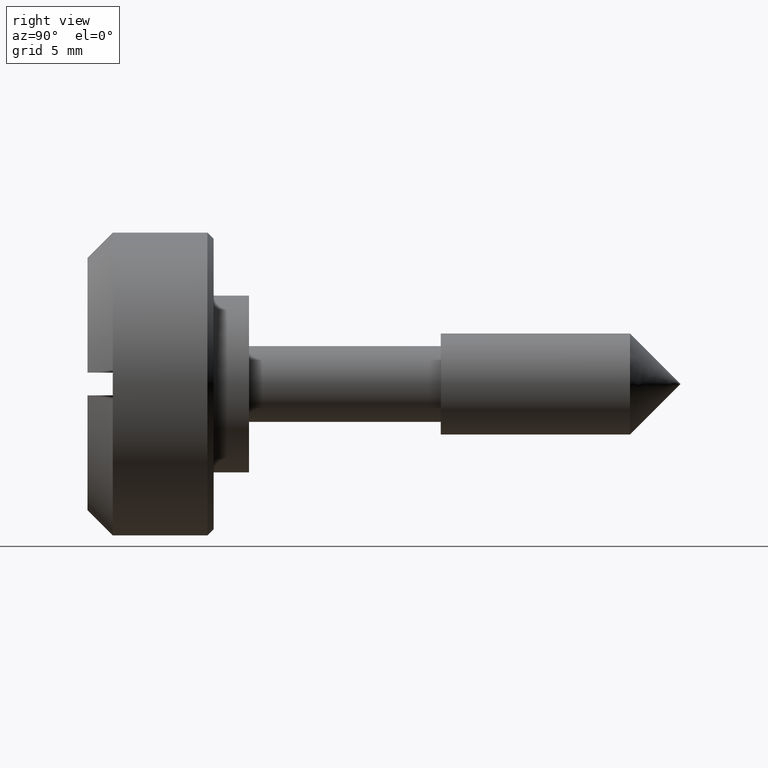
[diagram: clean part render]
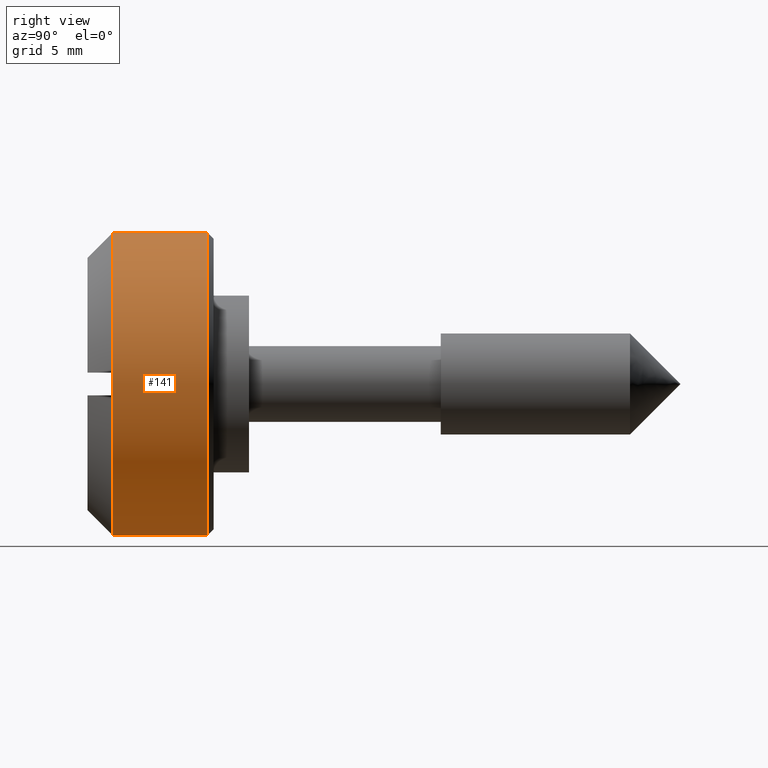
[diagram: same view with one face highlighted and labeled with its STEP entity id]
A machine part, right view. The second image highlights one B-rep face of the part: STEP entity #141.
In plain terms, the highlighted cylindrical surface (partial cylindrical patch) has radius 12 mm, axis along (0, -1, -0).
Its self-contained STEP definition (entity closure, byte-faithful):
#141=ADVANCED_FACE('',(#450),#449,.T.);
#449=CYLINDRICAL_SURFACE('',#732,1.20000000000E+01);
#450=FACE_OUTER_BOUND('',#733,.T.);
#729=CARTESIAN_POINT('',(-1.00200000000E+03,0.00000000000E+00,0.00000000000E+00));
#730=DIRECTION('',(-1.00000000000E+00,-0.00000000000E+00,-0.00000000000E+00));
#731=DIRECTION('',(-0.00000000000E+00,-0.00000000000E+00,1.00000000000E+00));
#732=AXIS2_PLACEMENT_3D('',#729,#730,#731);
#733=EDGE_LOOP('',(#972,#973,#974,#975));
#972=ORIENTED_EDGE('',*,*,#1114,.T.);
#973=ORIENTED_EDGE('',*,*,#1111,.T.);
#974=ORIENTED_EDGE('',*,*,#1115,.F.);
#975=ORIENTED_EDGE('',*,*,#1113,.F.);
#1111=EDGE_CURVE('',#1676,#1668,#1677,.T.);
#1113=EDGE_CURVE('',#1683,#1669,#1690,.T.);
#1114=EDGE_CURVE('',#1683,#1676,#1696,.T.);
#1115=EDGE_CURVE('',#1669,#1668,#1702,.T.);
#1668=VERTEX_POINT('',#2133);
#1669=VERTEX_POINT('',#2134);
#1676=VERTEX_POINT('',#2139);
#1677=(BOUNDED_CURVE() B_SPLINE_CURVE(1,(#2140,#2141),.UNSPECIFIED.,.F.,.F.) B_SPLINE_CURVE_WITH_KNOTS((2,2),(8.33333320912E-02,9.16666667486E-01),.UNSPECIFIED.) CURVE() GEOMETRIC_REPRESENTATION_ITEM() RATIONAL_B_SPLINE_CURVE((1.00000000000E+00,1.00000000000E+00)) REPRESENTATION_ITEM('') );
#1683=VERTEX_POINT('',#2142);
#1690=(BOUNDED_CURVE() B_SPLINE_CURVE(1,(#2147,#2148),.UNSPECIFIED.,.F.,.F.) B_SPLINE_CURVE_WITH_KNOTS((2,2),(8.33333333333E-02,9.16666666667E-01),.UNSPECIFIED.) CURVE() GEOMETRIC_REPRESENTATION_ITEM() RATIONAL_B_SPLINE_CURVE((7.50000000000E-01,7.50000000000E-01)) REPRESENTATION_ITEM('') );
#1696=CIRCLE('',#2152,1.20000000000E+01);
#1702=CIRCLE('',#2156,1.20000000000E+01);
#2133=CARTESIAN_POINT('',(-9.99990000000E+00,0.00000000000E+00,1.20000000000E+01));
#2134=CARTESIAN_POINT('',(-9.99990000000E+00,-5.92118946467E-16,-1.20000000000E+01));
#2139=CARTESIAN_POINT('',(-2.50000000000E+00,-4.73695157173E-15,1.20000000000E+01));
#2140=CARTESIAN_POINT('',(-2.49999998882E+00,0.00000000000E+00,1.20000000000E+01));
#2141=CARTESIAN_POINT('',(-9.99990000737E+00,0.00000000000E+00,1.20000000000E+01));
#2142=CARTESIAN_POINT('',(-2.50000000000E+00,0.00000000000E+00,-1.20000000000E+01));
#2147=CARTESIAN_POINT('',(-2.50000000000E+00,-5.92118946467E-16,-1.20000000000E+01));
#2148=CARTESIAN_POINT('',(-9.99990000000E+00,-5.92118946467E-16,-1.20000000000E+01));
#2149=CARTESIAN_POINT('',(-2.50000000000E+00,0.00000000000E+00,0.00000000000E+00));
#2150=DIRECTION('',(-1.00000000000E+00,0.00000000000E+00,-0.00000000000E+00));
#2151=DIRECTION('',(0.00000000000E+00,-1.22460635382E-16,-1.00000000000E+00));
#2152=AXIS2_PLACEMENT_3D('',#2149,#2150,#2151);
#2153=CARTESIAN_POINT('',(-9.99990000000E+00,0.00000000000E+00,0.00000000000E+00));
#2154=DIRECTION('',(-1.00000000000E+00,0.00000000000E+00,0.00000000000E+00));
#2155=DIRECTION('',(0.00000000000E+00,-1.22460635382E-16,1.00000000000E+00));
#2156=AXIS2_PLACEMENT_3D('',#2153,#2154,#2155);